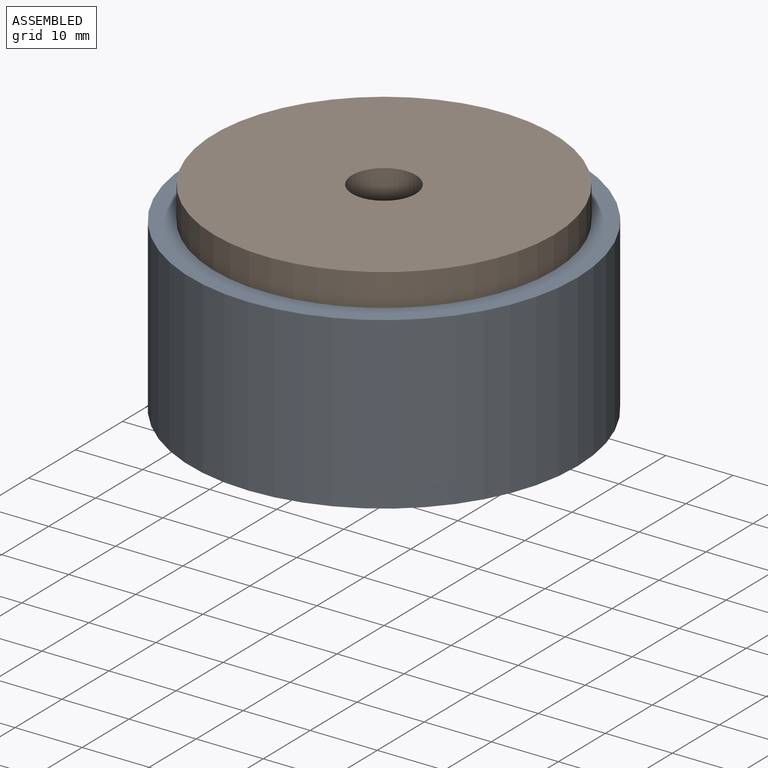
[diagram: assembled view]
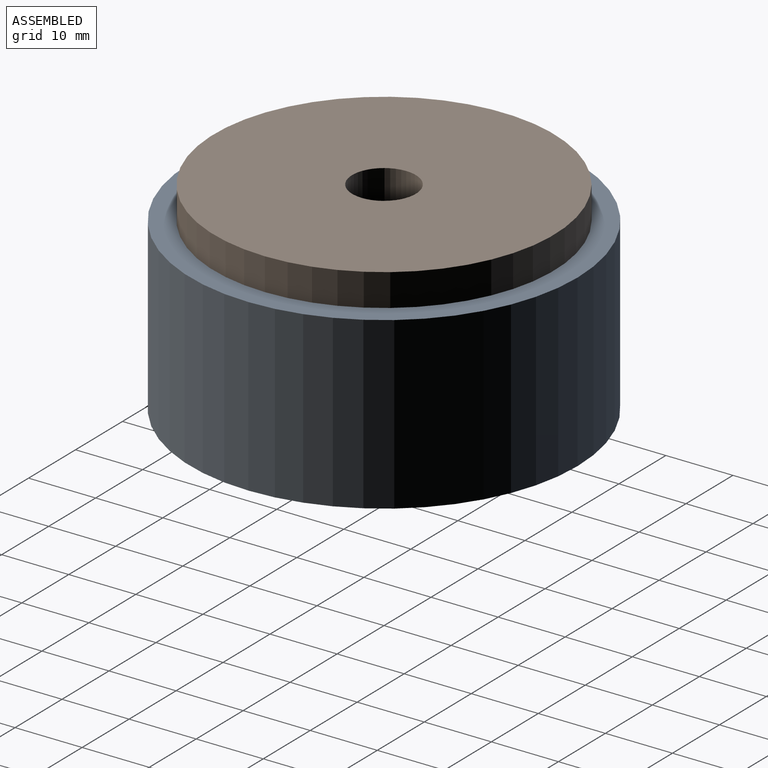
[diagram: assembled view, second angle]
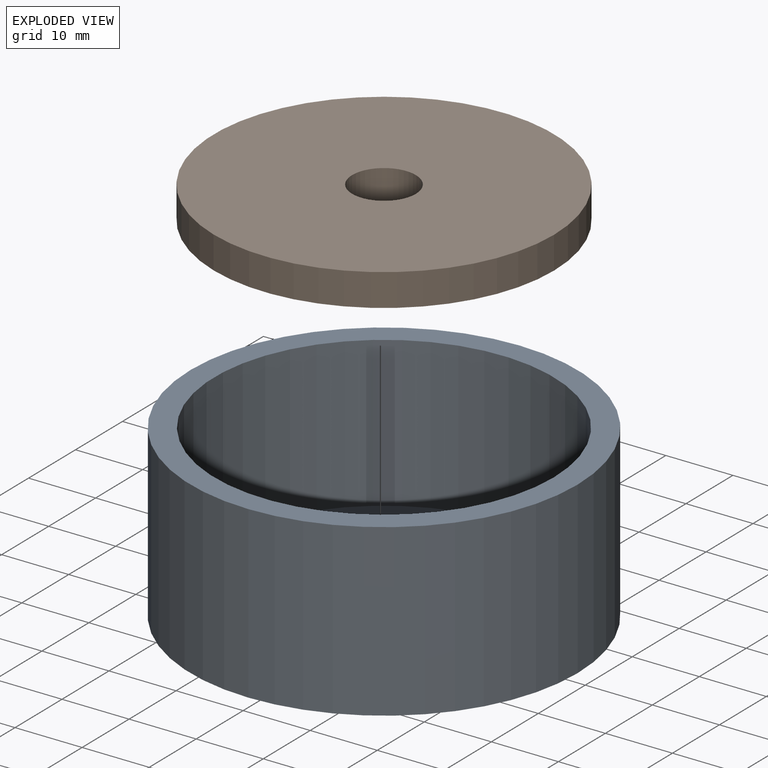
[diagram: exploded view]
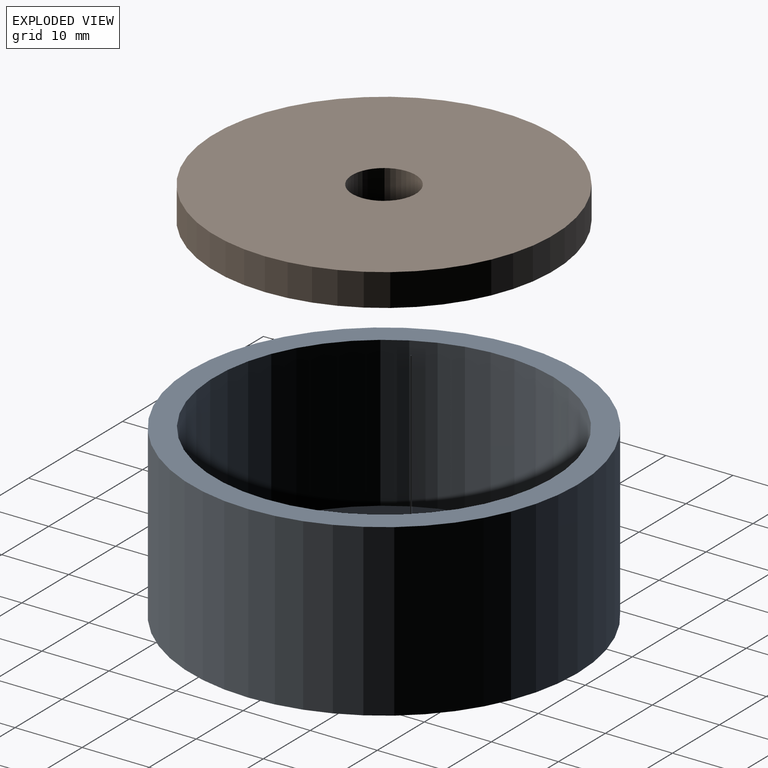
[diagram: exploded view, second angle]
ASSEMBLY  parts=2 mates=2
PART A: 69 faces, bbox 57.7x57.7x25.4 mm
  f0: cylinder r=28.87mm len=57.73mm, axis (0,0,-1), area 4606.9mm2, adj f1,f2
  f1: plane 57.73x57.73mm, normal (0,0,1), area 608mm2, adj f0,f3
  f2: plane 57.73x57.73mm, normal (0,0,-1), area 2617.8mm2, adj f0
  f3: cylinder r=25.29mm len=50.59mm, axis (0,0,1), area 3552.2mm2, adj f1,f4
  f4: plane 50.59x50.59mm, normal (0,0,1), area 1922mm2, adj f3,f5,f6,f7,f8,f10,f11,f12
  f5: plane 7.19x1.07mm, normal (-1,0,0), area 7.7mm2, adj f4,f6,f8,f9
  f6: plane 1.52x1.07mm, normal (0,-1,0), area 1.6mm2, adj f4,f5,f7,f9
  f7: plane 7.19x1.07mm, normal (1,0,0), area 7.7mm2, adj f4,f6,f8,f9
  f8: plane 1.52x1.07mm, normal (0,1,0), area 1.6mm2, adj f4,f5,f7,f9
  f9: plane 7.19x1.52mm, normal (0,0,1), area 11mm2, adj f5,f6,f7,f8
  f10: plane 1.52x1.07mm, normal (0,-1,0), area 1.6mm2, adj f4,f11,f17,f18
  f11: plane 5.92x1.07mm, normal (1,0,0), area 6.3mm2, adj f4,f10,f12,f18
  f12: plane 1.95x1.07mm, normal (0,-1,0), area 2.1mm2, adj f4,f11,f13,f18
  f13: plane 1.27x1.07mm, normal (1,0,0), area 1.4mm2, adj f4,f12,f14,f18
  f14: plane 5.43x1.07mm, normal (0,1,0), area 5.8mm2, adj f4,f13,f15,f18
  f15: plane 1.27x1.07mm, normal (-1,0,0), area 1.4mm2, adj f4,f14,f16,f18
  f16: plane 1.95x1.07mm, normal (0,-1,0), area 2.1mm2, adj f4,f15,f17,f18
  f17: plane 5.92x1.07mm, normal (-1,0,0), area 6.3mm2, adj f4,f10,f16,f18
  f18: plane 7.19x5.43mm, normal (0,0,1), area 15.9mm2, adj f10,f11,f12,f13,f14,f15,f16,f17
  f19: extruded ~1.53x1.07mm, area 1.9mm2, adj f4,f20,f46,f47
  f20: extruded ~1.19x1.07mm, area 1.4mm2, adj f4,f19,f21,f47
  f21: extruded ~1.38x1.07mm, area 1.8mm2, adj f4,f20,f22,f47
  f22: extruded ~1.07x0.97mm, area 1.2mm2, adj f4,f21,f23,f47
  f23: extruded ~1.07x0.3mm, area 0.4mm2, adj f4,f22,f24,f47
  f24: extruded ~1.07x0.35mm, area 0.4mm2, adj f4,f23,f25,f47
  f25: extruded ~1.07x0.53mm, area 0.6mm2, adj f4,f24,f26,f47
  f26: extruded ~1.07x0.66mm, area 0.8mm2, adj f4,f25,f27,f47
  f27: extruded ~1.07x0.74mm, area 0.8mm2, adj f4,f26,f28,f47
  f28: extruded ~1.07x0.95mm, area 1.1mm2, adj f4,f27,f29,f47
  f29: plane 1.19x1.07mm, normal (0.92,-0.38,0), area 1.4mm2, adj f4,f28,f30,f47
  f30: extruded ~1.07x1.06mm, area 1.2mm2, adj f4,f29,f31,f47
  f31: extruded ~1.07x1.07mm, area 1.2mm2, adj f4,f30,f32,f47
  f32: extruded ~1.79x1.07mm, area 2mm2, adj f4,f31,f33,f47
  f33: extruded ~1.5x1.07mm, area 1.8mm2, adj f4,f32,f34,f47
  f34: extruded ~1.07x0.88mm, area 1mm2, adj f4,f33,f35,f47
  f35: extruded ~1.07x0.66mm, area 0.9mm2, adj f4,f34,f36,f47
  f36: extruded ~1.07x0.99mm, area 1.2mm2, adj f4,f35,f37,f47
  f37: extruded ~1.07x0.93mm, area 1.1mm2, adj f4,f36,f38,f47
  f38: extruded ~1.07x0.35mm, area 0.5mm2, adj f4,f37,f39,f47
  f39: extruded ~1.07x0.38mm, area 0.4mm2, adj f4,f38,f40,f47
  f40: extruded ~1.07x0.57mm, area 0.7mm2, adj f4,f39,f41,f47
  f41: extruded ~1.07x0.77mm, area 0.9mm2, adj f4,f40,f42,f47
  f42: extruded ~1.07x0.92mm, area 1mm2, adj f4,f41,f43,f47
  f43: extruded ~1.23x1.07mm, area 1.4mm2, adj f4,f42,f44,f47
  f44: plane 1.42x1.07mm, normal (-1,0,0), area 1.5mm2, adj f4,f43,f45,f47
  f45: extruded ~2.04x1.07mm, area 2.2mm2, adj f4,f44,f46,f47
  f46: extruded ~1.95x1.07mm, area 2.2mm2, adj f4,f19,f45,f47
  f47: plane 7.39x4.68mm, normal (0,0,1), area 19.5mm2, adj f19,f20,f21,f22,f23,f24,f25,f26
  f48: plane 7.19x1.07mm, normal (-1,0,0), area 7.7mm2, adj f4,f49,f53,f54
  f49: plane 4.44x1.07mm, normal (0,-1,0), area 4.7mm2, adj f4,f48,f50,f54
  f50: plane 1.26x1.07mm, normal (1,0,0), area 1.3mm2, adj f4,f49,f51,f54
  f51: plane 2.91x1.07mm, normal (0,1,0), area 3.1mm2, adj f4,f50,f52,f54
  f52: plane 5.93x1.07mm, normal (1,0,0), area 6.3mm2, adj f4,f51,f53,f54
  f53: plane 1.52x1.07mm, normal (0,1,0), area 1.6mm2, adj f4,f48,f52,f54
  f54: plane 7.19x4.44mm, normal (0,0,1), area 14.6mm2, adj f48,f49,f50,f51,f52,f53
  f55: plane 7.19x1.07mm, normal (-1,0,0), area 7.7mm2, adj f4,f56,f58,f59
  f56: plane 1.52x1.07mm, normal (0,-1,0), area 1.6mm2, adj f4,f55,f57,f59
  f57: plane 7.19x1.07mm, normal (1,0,0), area 7.7mm2, adj f4,f56,f58,f59
  f58: plane 1.52x1.07mm, normal (0,1,0), area 1.6mm2, adj f4,f55,f57,f59
  f59: plane 7.19x1.52mm, normal (0,0,1), area 11mm2, adj f55,f56,f57,f58
  f60: plane 1.52x1.07mm, normal (0,-1,0), area 1.6mm2, adj f4,f61,f67,f68
  f61: plane 5.92x1.07mm, normal (1,0,0), area 6.3mm2, adj f4,f60,f62,f68
  f62: plane 1.95x1.07mm, normal (0,-1,0), area 2.1mm2, adj f4,f61,f63,f68
  f63: plane 1.27x1.07mm, normal (1,0,0), area 1.4mm2, adj f4,f62,f64,f68
  f64: plane 5.43x1.07mm, normal (0,1,0), area 5.8mm2, adj f4,f63,f65,f68
  f65: plane 1.27x1.07mm, normal (-1,0,0), area 1.4mm2, adj f4,f64,f66,f68
  f66: plane 1.95x1.07mm, normal (0,-1,0), area 2.1mm2, adj f4,f65,f67,f68
  f67: plane 5.92x1.07mm, normal (-1,0,0), area 6.3mm2, adj f4,f60,f66,f68
  f68: plane 7.19x5.43mm, normal (0,0,1), area 15.9mm2, adj f60,f61,f62,f63,f64,f65,f66,f67
PART B: 4 faces, bbox 50.7x50.7x4.8 mm
  f0: cylinder r=25.35mm len=50.7mm, axis (0,0,-1), area 768.7mm2, adj f1,f2
  f1: plane 50.7x50.7mm, normal (0,0,1), area 1948.4mm2, adj f0,f3
  f2: plane 50.7x50.7mm, normal (0,0,-1), area 1948.4mm2, adj f0,f3
  f3: cylinder r=4.75mm len=9.5mm, axis (0,0,1), area 144mm2, adj f1,f2
PLACE A at identity
PLACE B t=(58.82,-42.51,22.35)mm
MATE slider A.f0 <-> B.f0  axis (0,0,-1) through (0,0,12.7)mm
MATE fastened B.f0 <-> A.f0  axis (0,0,-1) through (0,0,25.4)mm
